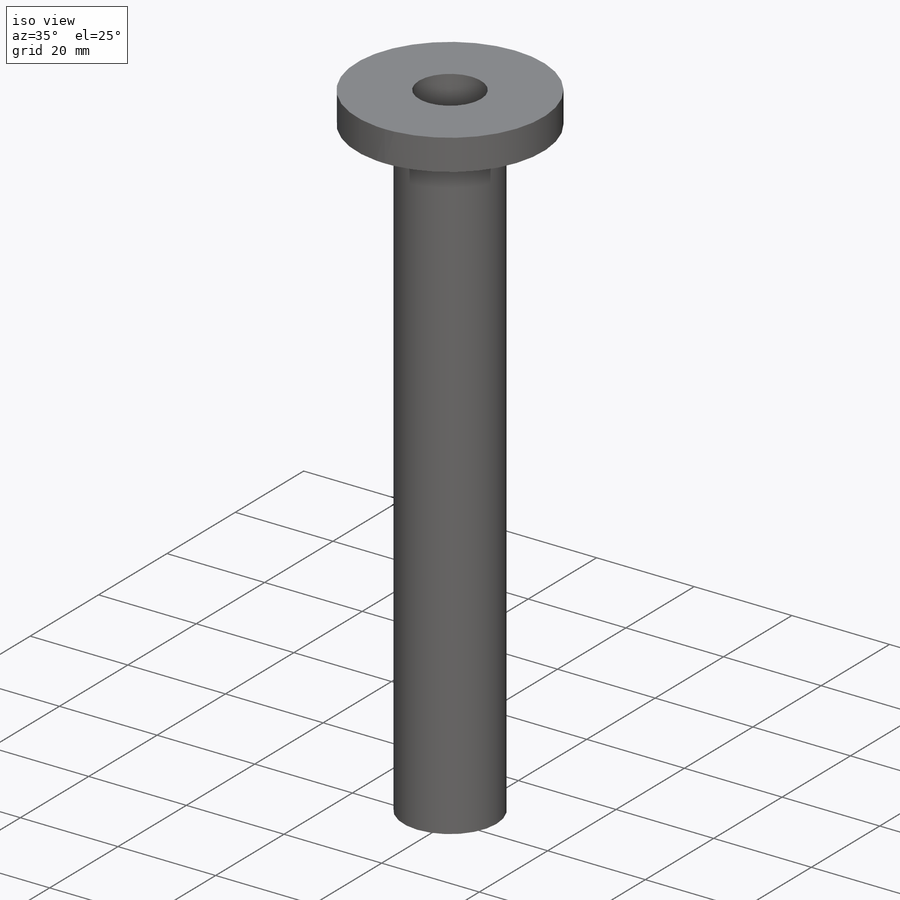
[diagram: iso view]
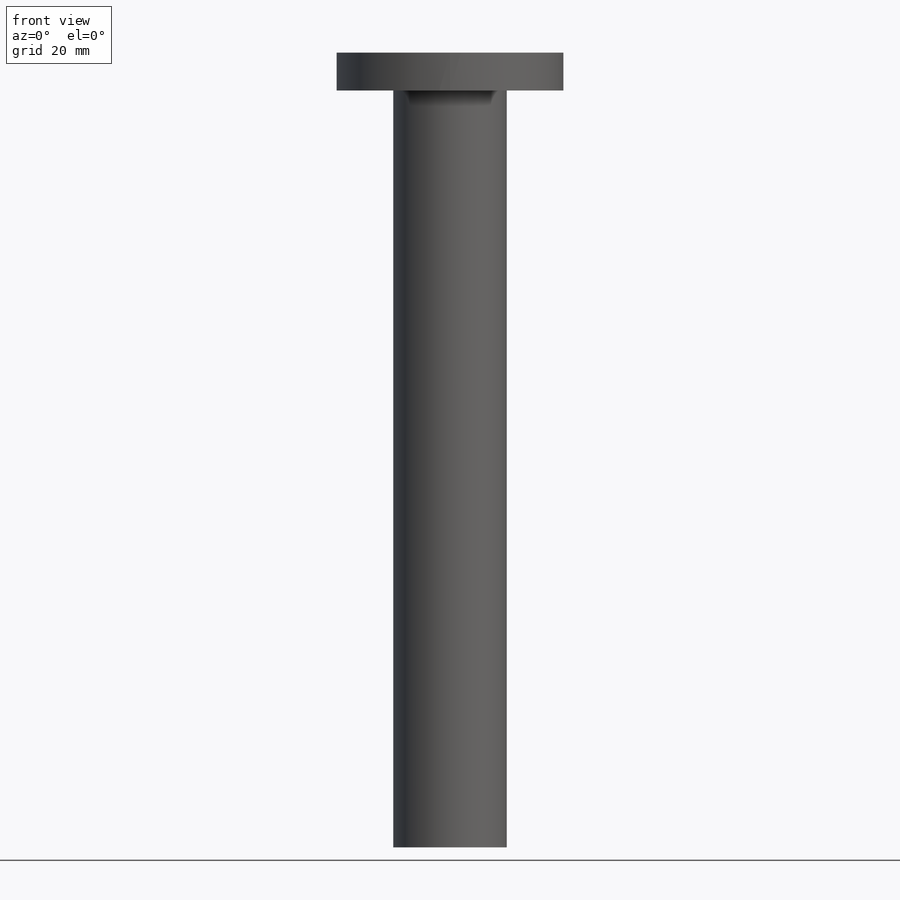
[diagram: front view]
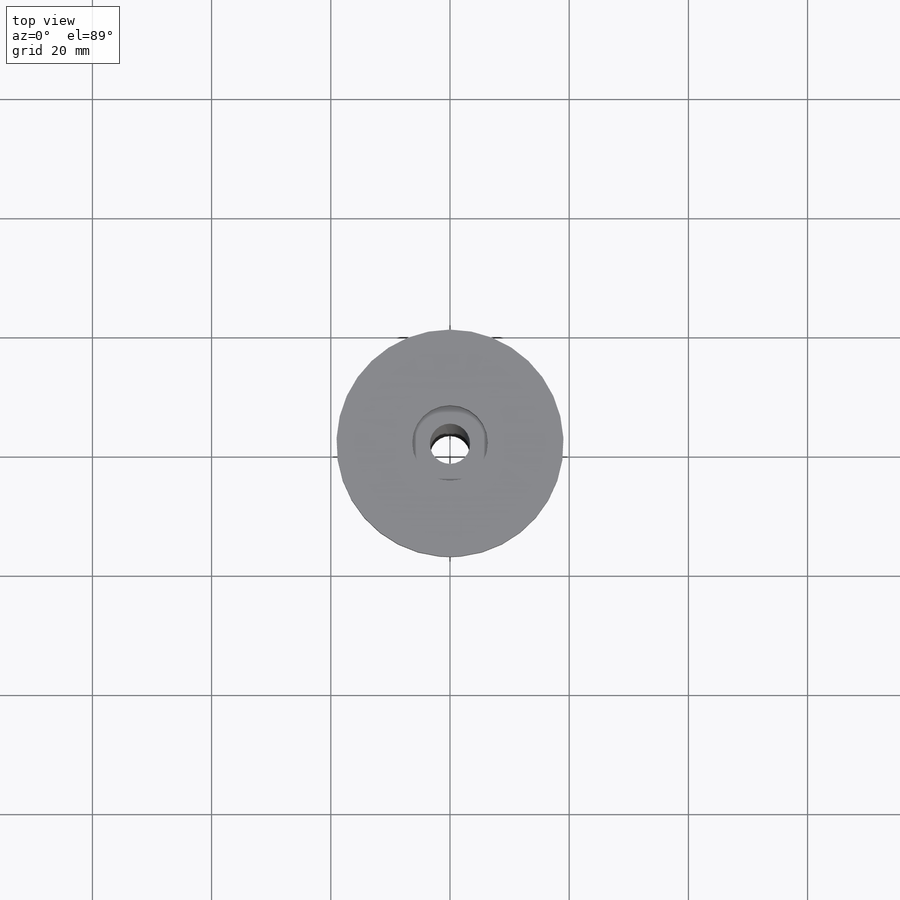
[diagram: top view]
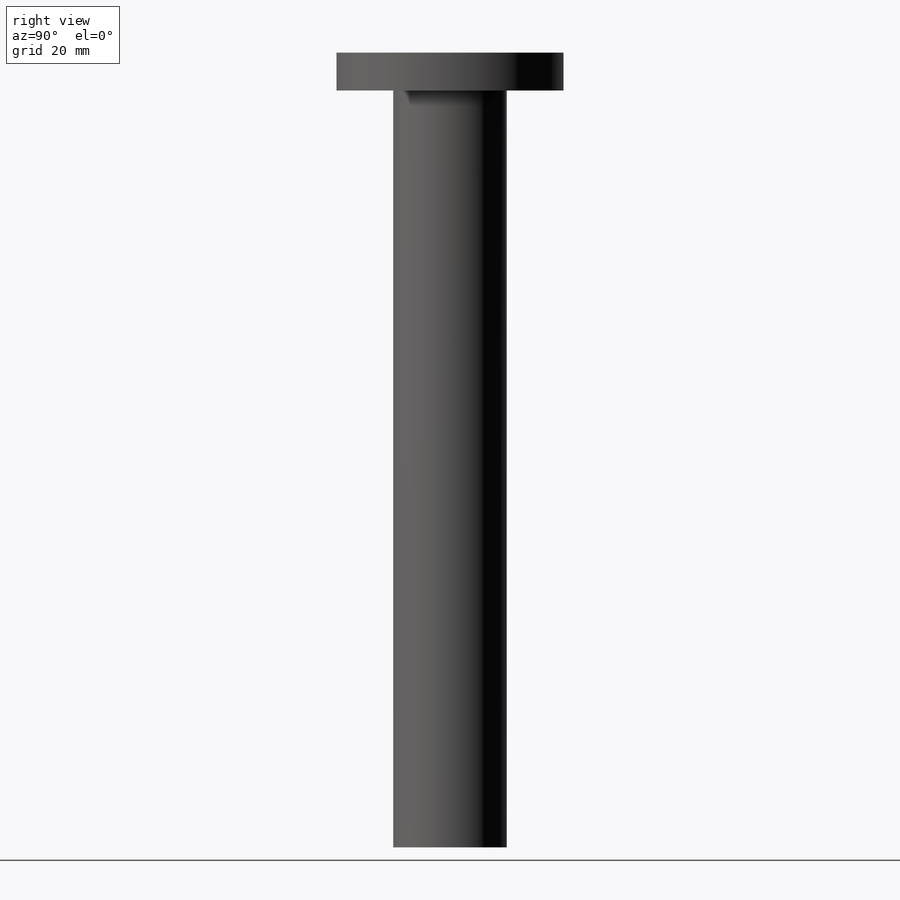
[diagram: right view]
SOLIDWORKS PART (.sldprt)
format: sldprt  version: not decoded by parser v0  size: 133,120 bytes
history: native  units: mm
features: sketch x5, cut_extrude x3, extrude x2, material x1 (+11 scaffold rows collapsed)
feature tree (22):
  scaffold x11  (default folders/planes/origin — collapsed)
  material  "Material <not specified>"
  sketch  "Sketch1"  dims[D1=19.05mm]
  extrude  "Boss-Extrude1"  Depth=127mm
  sketch  "Sketch2"  dims[D1=38.1mm]
  extrude  "Boss-Extrude2"  Depth=6.35mm
  sketch  "Sketch3"  dims[D1=~6.746875mm D2=12.7mm]
  cut_extrude  "Cut-Extrude1"  Depth=6.35mm
  sketch  "Sketch4"  dims[D1=12.7mm]
  cut_extrude  "Cut-Extrude2"  Depth=6.35mm
  sketch  "Sketch5"  dims[D1=~6.746875mm]
  cut_extrude  "Cut-Extrude3"  [1 undecoded]
decode coverage: 9 of 10 modeling features carry decoded parameters
note: ~ marks probable driven/reference dimensions
note: 1 parameter value undecoded
note: suppression state not decoded; provenance and decode notes live in map.json
